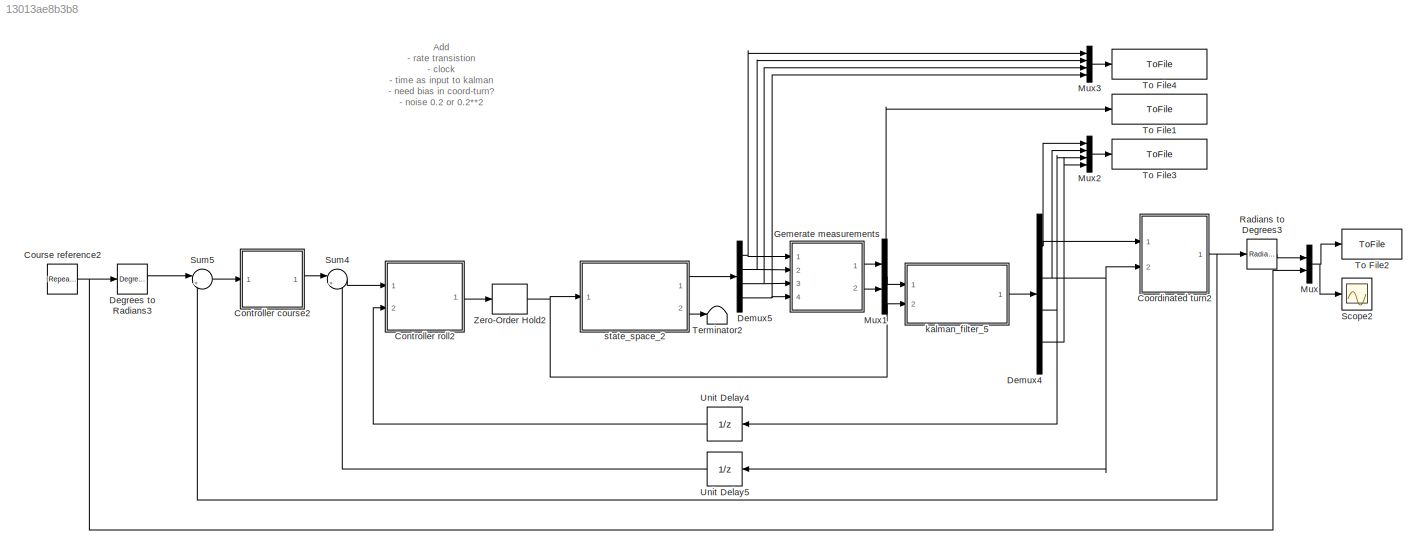
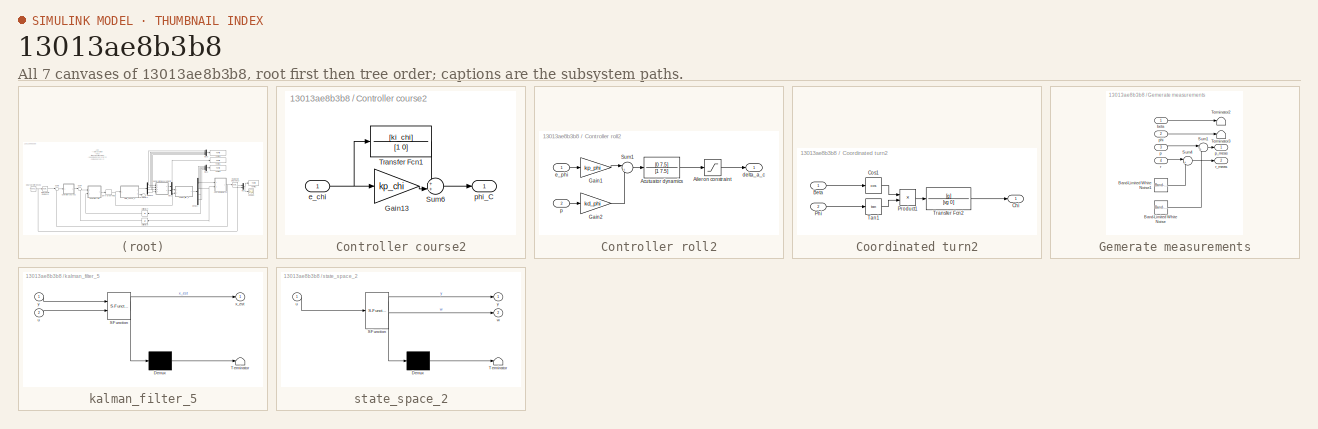
[diagram: thumbnail index - all 7 canvases of the model, root first then tree order]
MODEL slx_13013ae8b3b8
KIND model
CONFIG AbsTol = auto
CONFIG EnableMultiTasking = off
CONFIG FixedStep = auto
CONFIG MaxStep = auto
CONFIG MinStep = auto
CONFIG RelTol = 1e-3
CONFIG SampleTimeConstraint = Unconstrained
CONFIG Solver = VariableStepAuto
CONFIG SolverName = VariableStepAuto
CONFIG StartTime = 0.0
CONFIG StopTime = 300
BLOCK [SubSystem] Controller course2
  Ports = [1, 1]
  RequestExecContextInheritance = off
BLOCK [Gain] Controller course2/Gain13
  Gain = kp_chi
  OutDataTypeStr = Inherit: Inherit via internal rule
  ParamDataTypeStr = Inherit: Inherit via internal rule
  SaturateOnIntegerOverflow = off
BLOCK [Sum] Controller course2/Sum6
  IconShape = round
  InputSameDT = off
  Inputs = ++|
  OutDataTypeStr = Inherit: Inherit via internal rule
  Ports = [2, 1]
  SaturateOnIntegerOverflow = off
BLOCK [TransferFcn] Controller course2/Transfer Fcn1
  Denominator = [1 0]
  Numerator = [ki_chi]
BLOCK [Inport] Controller course2/e_chi
  IconDisplay = Port number
BLOCK [Outport] Controller course2/phi_C
  IconDisplay = Port number
BLOCK [SubSystem] Controller roll2
  Ports = [2, 1]
  RequestExecContextInheritance = off
BLOCK [TransferFcn] Controller roll2/Acutuator dynamics
  Denominator = [1 7.5]
  Numerator = [0 7.5]
BLOCK [Saturate] Controller roll2/Aileron constraint 
  InputPortMap = u0
  LowerLimit = -30*deg2rad
  Ports = [1, 1]
  UpperLimit = 30*deg2rad
BLOCK [Gain] Controller roll2/Gain1
  Gain = kp_phi
  OutDataTypeStr = Inherit: Inherit via internal rule
  ParamDataTypeStr = Inherit: Inherit via internal rule
  SaturateOnIntegerOverflow = off
BLOCK [Gain] Controller roll2/Gain2
  Gain = kd_phi
  OutDataTypeStr = Inherit: Inherit via internal rule
  ParamDataTypeStr = Inherit: Inherit via internal rule
  SaturateOnIntegerOverflow = off
BLOCK [Sum] Controller roll2/Sum1
  IconShape = round
  InputSameDT = off
  Inputs = |+-
  OutDataTypeStr = Inherit: Inherit via internal rule
  Ports = [2, 1]
  SaturateOnIntegerOverflow = off
BLOCK [Outport] Controller roll2/delta_a_c
  IconDisplay = Port number
BLOCK [Inport] Controller roll2/e_phi
  IconDisplay = Port number
BLOCK [Inport] Controller roll2/p
  IconDisplay = Port number
  Port = 2
BLOCK [SubSystem] Coordinated turn2
  Ports = [2, 1]
  RequestExecContextInheritance = off
BLOCK [Inport] Coordinated turn2/Beta
  IconDisplay = Port number
BLOCK [Outport] Coordinated turn2/Chi
  IconDisplay = Port number
BLOCK [Trigonometry] Coordinated turn2/Cos1
  Operator = cos
  Ports = [1, 1]
BLOCK [Inport] Coordinated turn2/Phi
  IconDisplay = Port number
  Port = 2
BLOCK [Product] Coordinated turn2/Product1
  InputSameDT = off
  OutDataTypeStr = Inherit: Inherit via internal rule
  Ports = [2, 1]
  RndMeth = Floor
  SaturateOnIntegerOverflow = off
BLOCK [Trigonometry] Coordinated turn2/Tan1
  Operator = tan
  Ports = [1, 1]
BLOCK [TransferFcn] Coordinated turn2/Transfer Fcn2
  Denominator = [vg 0]
  Numerator = [g]
BLOCK [Reference] Course reference2  REF=simulink/Sources/Repeating
Sequence
Stair
  Ports = [0, 1]
  SourceBlock = simulink/Sources/Repeating\nSequence\nStair
  SourceProductBaseCode = SL
  SourceProductName = Simulink
  SourceType = Repeating Sequence Stair
BLOCK [Reference] Degrees to Radians3  REF=simulink_extras/Transformations/Degrees to
Radians
  Ports = [1, 1]
  SourceBlock = simulink_extras/Transformations/Degrees to\nRadians
  SourceProductBaseCode = SL
  SourceProductName = Simulink
  SourceType = DegreesToRadians
BLOCK [Demux] Demux4
  DisplayOption = bar
  Ports = [1, 4]
BLOCK [Demux] Demux5
  DisplayOption = bar
  Ports = [1, 4]
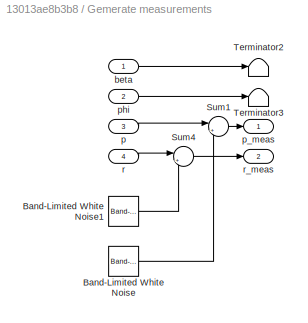
BLOCK [SubSystem] Gemerate measurements
  Ports = [4, 2]
  RequestExecContextInheritance = off
BLOCK [Reference] Gemerate measurements/Band-Limited White Noise  REF=simulink/Sources/Band-Limited
White Noise
  Ports = [0, 1]
  SourceBlock = simulink/Sources/Band-Limited\nWhite Noise
  SourceProductBaseCode = SL
  SourceProductName = Simulink
  SourceType = Band-Limited White Noise.
BLOCK [Reference] Gemerate measurements/Band-Limited White Noise1  REF=simulink/Sources/Band-Limited
White Noise
  Ports = [0, 1]
  SourceBlock = simulink/Sources/Band-Limited\nWhite Noise
  SourceProductBaseCode = SL
  SourceProductName = Simulink
  SourceType = Band-Limited White Noise.
BLOCK [Sum] Gemerate measurements/Sum1
  IconShape = round
  InputSameDT = off
  Inputs = |++
  OutDataTypeStr = Inherit: Inherit via internal rule
  Ports = [2, 1]
  SaturateOnIntegerOverflow = off
BLOCK [Sum] Gemerate measurements/Sum4
  IconShape = round
  InputSameDT = off
  Inputs = |++
  OutDataTypeStr = Inherit: Inherit via internal rule
  Ports = [2, 1]
  SaturateOnIntegerOverflow = off
BLOCK [Terminator] Gemerate measurements/Terminator2
BLOCK [Terminator] Gemerate measurements/Terminator3
BLOCK [Inport] Gemerate measurements/beta
  IconDisplay = Port number
BLOCK [Inport] Gemerate measurements/p
  IconDisplay = Port number
  Port = 3
BLOCK [Outport] Gemerate measurements/p_meas
  IconDisplay = Port number
BLOCK [Inport] Gemerate measurements/phi
  IconDisplay = Port number
  Port = 2
BLOCK [Inport] Gemerate measurements/r
  IconDisplay = Port number
  Port = 4
BLOCK [Outport] Gemerate measurements/r_meas
  IconDisplay = Port number
  Port = 2
BLOCK [Mux] Mux
  DisplayOption = bar
  Inputs = 2
  Ports = [2, 1]
BLOCK [Mux] Mux1
  DisplayOption = bar
  Inputs = 2
  Ports = [2, 1]
BLOCK [Mux] Mux2
  DisplayOption = bar
  Ports = [4, 1]
BLOCK [Mux] Mux3
  DisplayOption = bar
  Ports = [4, 1]
BLOCK [Reference] Radians to Degrees3  REF=simulink_extras/Transformations/Radians
to Degrees
  Ports = [1, 1]
  SourceBlock = simulink_extras/Transformations/Radians\nto Degrees
  SourceProductBaseCode = SL
  SourceProductName = Simulink
  SourceType = RadiansToDegrees
BLOCK [Scope] Scope2
  Floating = off
  NumInputPorts = 1
  Ports = [1]
  ScopeSpecificationString = Simulink.scopes.TimeScopeBlockCfg('CurrentConfiguration', extmgr.ConfigurationSet(extmgr.Configuration('Core','General UI',true),extmgr.Configuration('Core','Source UI',true),extmgr.Configuration('Sources','WiredSimulink',true),extmgr.Configuration('Visuals','Time Domain',true,'SerializedDisplays',{struct('MinYLimReal','-25.35013','MaxYLimReal','21.57279','YLabelReal','','MinYLimMag','0.00000','Ma...<+1492ch>
BLOCK [Sum] Sum4
  IconShape = round
  InputSameDT = off
  Inputs = |+-
  OutDataTypeStr = Inherit: Inherit via internal rule
  Ports = [2, 1]
  SaturateOnIntegerOverflow = off
BLOCK [Sum] Sum5
  IconShape = round
  InputSameDT = off
  Inputs = |+-
  OutDataTypeStr = Inherit: Inherit via internal rule
  Ports = [2, 1]
  SaturateOnIntegerOverflow = off
BLOCK [Terminator] Terminator2
BLOCK [ToFile] To File1
  Filename = measurements.mat
  Ports = [1]
BLOCK [ToFile] To File2
  Filename = course.mat
  Ports = [1]
BLOCK [ToFile] To File3
  Filename = estimates.mat
  Ports = [1]
BLOCK [ToFile] To File4
  Filename = states.mat
  Ports = [1]
BLOCK [UnitDelay] Unit Delay4
  InputProcessing = Elements as channels (sample based)
  SampleTime = 0.01
BLOCK [UnitDelay] Unit Delay5
  InputProcessing = Elements as channels (sample based)
  SampleTime = 0.01
BLOCK [ZeroOrderHold] Zero-Order Hold2
  SampleTime = 0.01
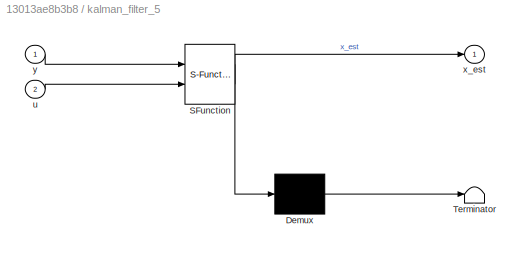
BLOCK [SubSystem] kalman_filter_5
  ErrorFcn = Stateflow.Translate.translate
  PermitHierarchicalResolution = ExplicitOnly
  Ports = [2, 1]
  RequestExecContextInheritance = off
  SFBlockType = MATLAB Function
  TreatAsAtomicUnit = on
BLOCK [Demux] kalman_filter_5/ Demux 
  Outputs = 1
  Ports = [1, 1]
BLOCK [S-Function] kalman_filter_5/ SFunction 
  EnableBusSupport = on
  FunctionName = sf_sfun
  PortCounts = [2 2]
  Ports = [2, 2]
  SFcnIsStateOwnerBlock = off
  SFunctionDeploymentMode = off
  Tag = Stateflow S-Function state_space_w_kalman_3g 4
BLOCK [Terminator] kalman_filter_5/ Terminator 
BLOCK [Inport] kalman_filter_5/u
  IconDisplay = Port number
  Port = 2
BLOCK [Outport] kalman_filter_5/x_est
  IconDisplay = Port number
BLOCK [Inport] kalman_filter_5/y
  IconDisplay = Port number
BLOCK [SubSystem] state_space_2
  ErrorFcn = Stateflow.Translate.translate
  PermitHierarchicalResolution = ExplicitOnly
  Ports = [1, 2]
  RequestExecContextInheritance = off
  SFBlockType = MATLAB Function
  TreatAsAtomicUnit = on
BLOCK [Demux] state_space_2/ Demux 
  Outputs = 1
  Ports = [1, 1]
BLOCK [S-Function] state_space_2/ SFunction 
  EnableBusSupport = on
  FunctionName = sf_sfun
  PortCounts = [1 3]
  Ports = [1, 3]
  SFcnIsStateOwnerBlock = off
  SFunctionDeploymentMode = off
  Tag = Stateflow S-Function state_space_w_kalman_3g 5
BLOCK [Terminator] state_space_2/ Terminator 
BLOCK [Inport] state_space_2/u
  IconDisplay = Port number
BLOCK [Outport] state_space_2/w
  IconDisplay = Port number
  Port = 2
BLOCK [Outport] state_space_2/y
  IconDisplay = Port number
ANNOTATION (root): Add - rate transistion - clock - time as input to kalman - need bias in coord-turn? - noise 0.2 or 0.2**2 - KF initialization values - Should E be included in P_pred - used tune param from state_space Qd, - anti-windup?
LINE Controller course2/Gain13:1 -> Controller course2/Sum6:2
LINE Controller course2/Sum6:1 -> Controller course2/phi_C:1
LINE Controller course2/Transfer Fcn1:1 -> Controller course2/Sum6:1
NET Controller course2/e_chi:1 -> Controller course2/Gain13:1, Controller course2/Transfer Fcn1:1
LINE Controller course2:1 -> Sum4:1
LINE Controller roll2/Acutuator dynamics:1 -> Controller roll2/Aileron constraint :1
LINE Controller roll2/Aileron constraint :1 -> Controller roll2/delta_a_c:1
LINE Controller roll2/Gain1:1 -> Controller roll2/Sum1:1
LINE Controller roll2/Gain2:1 -> Controller roll2/Sum1:2
LINE Controller roll2/Sum1:1 -> Controller roll2/Acutuator dynamics:1
LINE Controller roll2/e_phi:1 -> Controller roll2/Gain1:1
LINE Controller roll2/p:1 -> Controller roll2/Gain2:1
LINE Controller roll2:1 -> Zero-Order Hold2:1
LINE Coordinated turn2/Beta:1 -> Coordinated turn2/Cos1:1
LINE Coordinated turn2/Cos1:1 -> Coordinated turn2/Product1:1
LINE Coordinated turn2/Phi:1 -> Coordinated turn2/Tan1:1
LINE Coordinated turn2/Product1:1 -> Coordinated turn2/Transfer Fcn2:1
LINE Coordinated turn2/Tan1:1 -> Coordinated turn2/Product1:2
LINE Coordinated turn2/Transfer Fcn2:1 -> Coordinated turn2/Chi:1
NET Coordinated turn2:1 -> Radians to Degrees3:1, Sum5:2
NET Course reference2:1 -> Degrees to Radians3:1, Mux:2
LINE Degrees to Radians3:1 -> Sum5:1
NET Demux4:1 -> Coordinated turn2:1, Mux2:1
NET Demux4:2 -> Coordinated turn2:2, Mux2:2, Unit Delay5:1
NET Demux4:3 -> Mux2:3, Unit Delay4:1
LINE Demux4:4 -> Mux2:4
NET Demux5:1 -> Gemerate measurements:1, Mux3:1
NET Demux5:2 -> Gemerate measurements:2, Mux3:2
NET Demux5:3 -> Gemerate measurements:3, Mux3:3
NET Demux5:4 -> Gemerate measurements:4, Mux3:4
LINE Gemerate measurements/Band-Limited White Noise1:1 -> Gemerate measurements/Sum4:2
LINE Gemerate measurements/Band-Limited White Noise:1 -> Gemerate measurements/Sum1:2
LINE Gemerate measurements/Sum1:1 -> Gemerate measurements/p_meas:1
LINE Gemerate measurements/Sum4:1 -> Gemerate measurements/r_meas:1
LINE Gemerate measurements/beta:1 -> Gemerate measurements/Terminator2:1
LINE Gemerate measurements/p:1 -> Gemerate measurements/Sum1:1
LINE Gemerate measurements/phi:1 -> Gemerate measurements/Terminator3:1
LINE Gemerate measurements/r:1 -> Gemerate measurements/Sum4:1
LINE Gemerate measurements:1 -> Mux1:1
LINE Gemerate measurements:2 -> Mux1:2
NET Mux1:1 -> To File1:1, kalman_filter_5:1
LINE Mux2:1 -> To File3:1
LINE Mux3:1 -> To File4:1
NET Mux:1 -> Scope2:1, To File2:1
LINE Radians to Degrees3:1 -> Mux:1
LINE Sum4:1 -> Controller roll2:1
LINE Sum5:1 -> Controller course2:1
LINE Unit Delay4:1 -> Controller roll2:2
LINE Unit Delay5:1 -> Sum4:2
NET Zero-Order Hold2:1 -> kalman_filter_5:2, state_space_2:1
LINE kalman_filter_5:1 -> Demux4:1
LINE state_space_2:1 -> Demux5:1
LINE state_space_2:2 -> Terminator2:1
note: NET lines group one-source signal fan-out (src -> all destinations, sorted); 1:1 wires keep LINE
CHART kalman_filter_5 states=1 transitions=1
  STATE_LABEL 'eML_blk_kernel()'
  STATE_LABEL 'SCRIPT:\nfunction x_est = kalman_filter_3(y, u)\n\n    % Persistent variables to be kept between function calls\n    persistent counter; % Variable for checking if it is the first iteration.\n    persistent x_upd;       % The updated state x\n    persistent P_upd;       % The updated error covariance\n    persistent x_pred;      % The Predicted state x\n    persistent P_pred;      % The Predicted error co...<+2544ch>'
CHART state_space_2 states=1 transitions=1
  STATE_LABEL 'eML_blk_kernel()'
  STATE_LABEL 'SCRIPT:\nfunction [y, w] = state_space_3(u)\n% Generate the output of the state space\n\n    % Persistent variables to be kept between function calls\n    persistent counter; % Variable for checking if it is the first iteration.\n    persistent x;       % The state x\n    \n   % The next line is necessary for generating unique process noise for every simulation.\n   % Otherwise, the noise will be equal eve...<+1603ch>'
